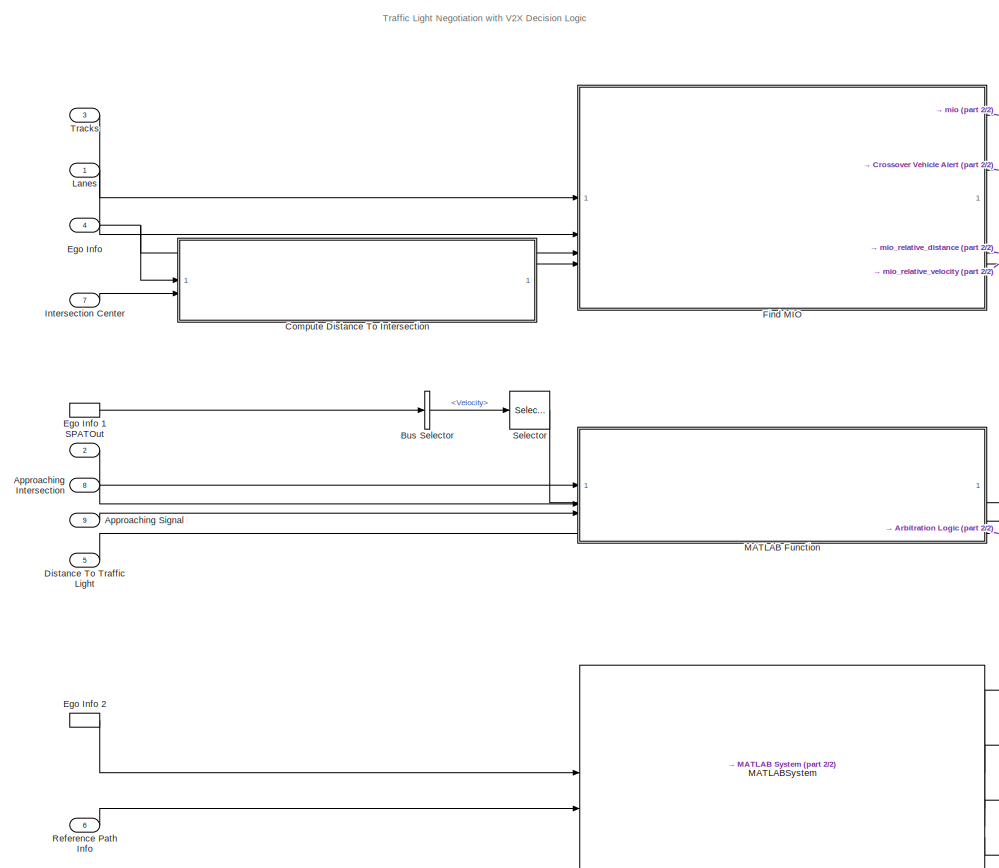
[diagram: root canvas - part 1/2, left side, full height]
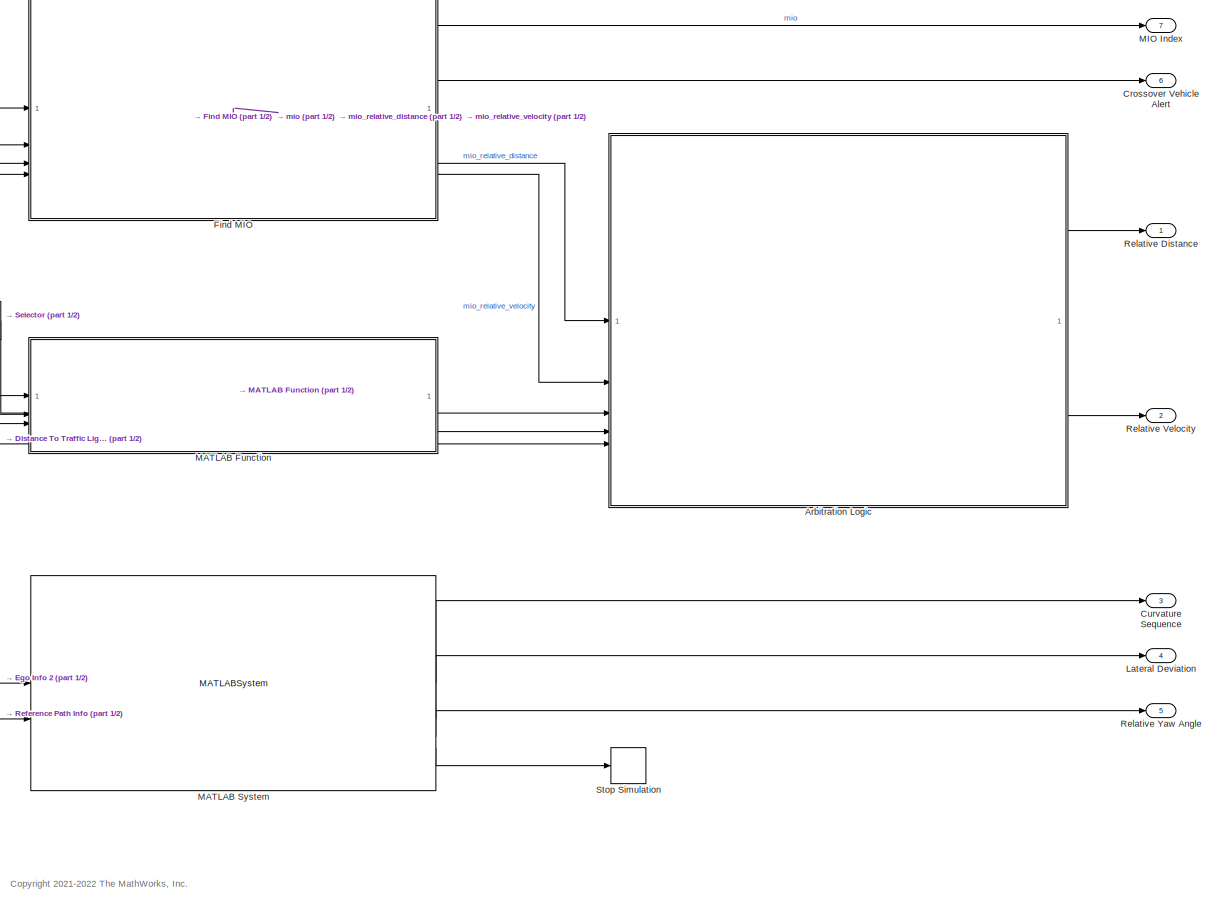
[diagram: root canvas - part 2/2, center side, full height]
MODEL slx_30c26fd429b3
KIND model
CONFIG AbsTol = auto
CONFIG EnableMultiTasking = on
CONFIG FixedStep = 0.001
CONFIG MaxStep = auto
CONFIG MinStep = auto
CONFIG RelTol = 1e-8
CONFIG SampleTimeConstraint = Unconstrained
CONFIG SolverName = VariableStepAuto
CONFIG StartTime = 0.0
CONFIG StopTime = scenario.StopTime
BLOCK [Inport] Approaching Intersection
  OutDataTypeStr = string
  Port = 8
BLOCK [Inport] Approaching Signal
  OutDataTypeStr = string
  Port = 9
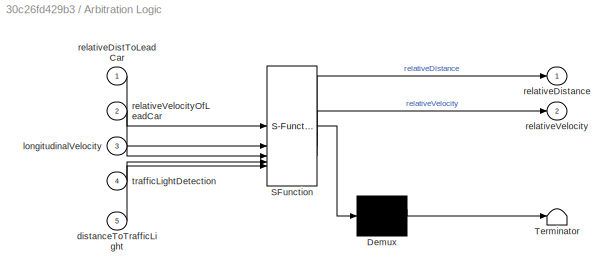
BLOCK [SubSystem] Arbitration Logic
  ErrorFcn = Stateflow.Translate.translate
  PermitHierarchicalResolution = ExplicitOnly
  SFBlockType = Chart
  SystemSampleTime = Ts
  TreatAsAtomicUnit = on
BLOCK [Demux] Arbitration Logic/ Demux 
  Outputs = 1
BLOCK [S-Function] Arbitration Logic/ SFunction 
  EnableBusSupport = on
  FunctionName = sf_sfun
  PortCounts = [5 3]
  SFcnIsStateOwnerBlock = off
  SFunctionDeploymentMode = off
  Tag = Stateflow S-Function 5
BLOCK [Terminator] Arbitration Logic/ Terminator 
BLOCK [Inport] Arbitration Logic/distanceToTrafficLight
  Port = 5
BLOCK [Inport] Arbitration Logic/longitudinalVelocity
  Port = 3
BLOCK [Inport] Arbitration Logic/relativeDistToLeadCar
BLOCK [Outport] Arbitration Logic/relativeDistance
BLOCK [Outport] Arbitration Logic/relativeVelocity
  Port = 2
BLOCK [Inport] Arbitration Logic/relativeVelocityOfLeadCar
  Port = 2
BLOCK [Inport] Arbitration Logic/trafficLightDetection
  Port = 4
BLOCK [BusSelector] Bus Selector
  OutputSignals = Velocity
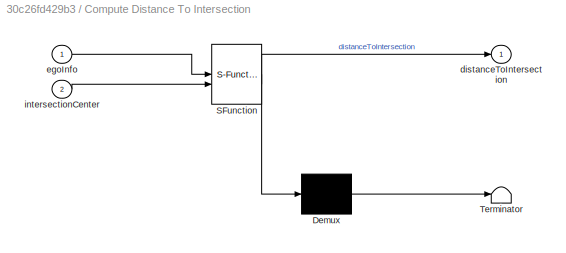
BLOCK [SubSystem] Compute Distance To Intersection
  ErrorFcn = Stateflow.Translate.translate
  PermitHierarchicalResolution = ExplicitOnly
  SFBlockType = MATLAB Function
  TreatAsAtomicUnit = on
BLOCK [Demux] Compute Distance To Intersection/ Demux 
  Outputs = 1
BLOCK [S-Function] Compute Distance To Intersection/ SFunction 
  EnableBusSupport = on
  FunctionName = sf_sfun
  PortCounts = [2 2]
  SFcnIsStateOwnerBlock = off
  SFunctionDeploymentMode = off
  Tag = Stateflow S-Function 2
BLOCK [Terminator] Compute Distance To Intersection/ Terminator 
BLOCK [Outport] Compute Distance To Intersection/distanceToIntersection
BLOCK [Inport] Compute Distance To Intersection/egoInfo
BLOCK [Inport] Compute Distance To Intersection/intersectionCenter
  Port = 2
BLOCK [Outport] Crossover Vehicle Alert
  Port = 6
BLOCK [Outport] Curvature Sequence
  Port = 3
BLOCK [Inport] Distance To Traffic Light
  OutDataTypeStr = double
  Port = 5
  PortDimensions = 1
  SampleTime = [0.10000000000000001,0]
  SamplingMode = Sample based
  SignalType = real
BLOCK [Inport] Ego Info 
  OutDataTypeStr = Bus: BusVehiclePose
  Port = 4
  SampleTime = [0.10000000000000001,0]
  SamplingMode = Sample based
  SignalType = real
BLOCK [InportShadow] Ego Info 1
  OutDataTypeStr = Bus: BusVehiclePose
  Port = 4
  SampleTime = [0.10000000000000001,0]
  SamplingMode = Sample based
  SignalType = real
BLOCK [InportShadow] Ego Info 2
  OutDataTypeStr = Bus: BusVehiclePose
  Port = 4
  SampleTime = [0.10000000000000001,0]
  SamplingMode = Sample based
  SignalType = real
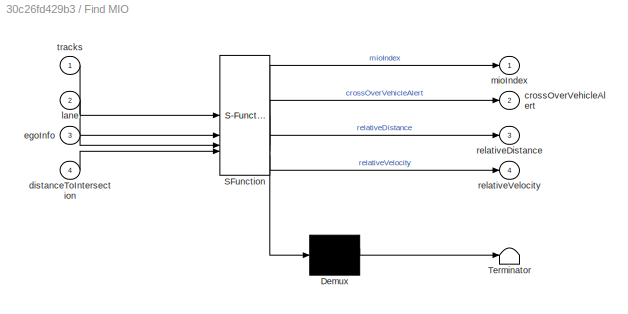
BLOCK [SubSystem] Find MIO
  ErrorFcn = Stateflow.Translate.translate
  PermitHierarchicalResolution = ExplicitOnly
  SFBlockType = MATLAB Function
  SystemSampleTime = Ts
  TreatAsAtomicUnit = on
BLOCK [Demux] Find MIO/ Demux 
  Outputs = 1
BLOCK [S-Function] Find MIO/ SFunction 
  EnableBusSupport = on
  FunctionName = sf_sfun
  Parameters = maxDistance,posSelector,velSelector
  PortCounts = [4 5]
  SFcnIsStateOwnerBlock = off
  SFunctionDeploymentMode = off
  Tag = Stateflow S-Function 1
BLOCK [Terminator] Find MIO/ Terminator 
BLOCK [Outport] Find MIO/crossOverVehicleAlert
  Port = 2
BLOCK [Inport] Find MIO/distanceToIntersection
  Port = 4
BLOCK [Inport] Find MIO/egoInfo
  Port = 3
BLOCK [Inport] Find MIO/lane
  Port = 2
BLOCK [Outport] Find MIO/mioIndex
  VectorParamsAs1DForOutWhenUnconnected = off
BLOCK [Outport] Find MIO/relativeDistance
  Port = 3
  VectorParamsAs1DForOutWhenUnconnected = off
BLOCK [Outport] Find MIO/relativeVelocity
  Port = 4
  VectorParamsAs1DForOutWhenUnconnected = off
BLOCK [Inport] Find MIO/tracks
BLOCK [Inport] Intersection Center
  OutDataTypeStr = double
  Port = 7
  PortDimensions = 3
  SampleTime = [0.10000000000000001,0]
  SamplingMode = Sample based
  SignalType = real
BLOCK [Inport] Lanes
  OutDataTypeStr = Bus: LaneSensor
BLOCK [Outport] Lateral Deviation
  Port = 4
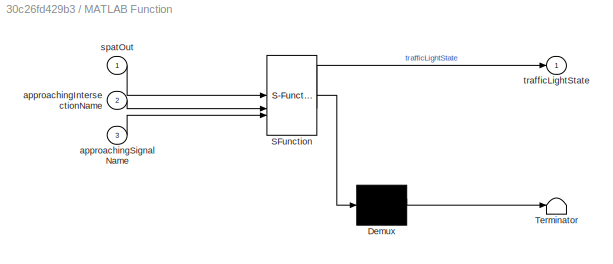
BLOCK [SubSystem] MATLAB Function
  ErrorFcn = Stateflow.Translate.translate
  PermitHierarchicalResolution = ExplicitOnly
  SFBlockType = MATLAB Function
  ShowPortLabels = FromPortBlockName
  TreatAsAtomicUnit = on
BLOCK [Demux] MATLAB Function/ Demux 
  Outputs = 1
BLOCK [S-Function] MATLAB Function/ SFunction 
  EnableBusSupport = on
  FunctionName = sf_sfun
  PortCounts = [3 2]
  SFcnIsStateOwnerBlock = off
  SFunctionDeploymentMode = off
  Tag = Stateflow S-Function 3
BLOCK [Terminator] MATLAB Function/ Terminator 
BLOCK [Inport] MATLAB Function/approachingIntersectionName
  Port = 2
BLOCK [Inport] MATLAB Function/approachingSignalName
  Port = 3
BLOCK [Inport] MATLAB Function/spatOut
BLOCK [Outport] MATLAB Function/trafficLightState
BLOCK [MATLABSystem] MATLAB System
  DistanceFromCGToRear = lr
  MaskDisplay = disp('HelperCalculateReferencePose');\nport_label('input',1,'EgoActor');\nport_label('input',2,'EgoReferencePath');\nport_label('output',1,'CurvatureSequence');\nport_label('output',2,'LateralDeviation');\nport_label('output',3,'RelativeYawAngle');\nport_label('output',4,'IsGoalReached');
  MaskType = HelperCalculateReferencePose
  PredictionHorizon = PredictionHorizon
  SampleTime = 0.1
  SimulateUsing = Code generation
  System = HelperCalculateReferencePose
BLOCK [Outport] MIO Index
  Port = 7
BLOCK [Inport] Reference Path Info 
  BusOutputAsStruct = on
  OutDataTypeStr = Bus: ReferencePathInfo
  Port = 6
  PortDimensions = 1
  SampleTime = [0.10000000000000001,0]
BLOCK [Outport] Relative Distance
  OutDataTypeStr = double
  PortDimensions = 1
  SampleTime = [0.10000000000000001,0]
  SamplingMode = Sample based
  SignalType = real
  VectorParamsAs1DForOutWhenUnconnected = off
BLOCK [Outport] Relative Velocity
  OutDataTypeStr = double
  Port = 2
  PortDimensions = 1
  SampleTime = [0.10000000000000001,0]
  SamplingMode = Sample based
  SignalType = real
  VectorParamsAs1DForOutWhenUnconnected = off
BLOCK [Outport] Relative Yaw Angle
  Port = 5
BLOCK [Inport] SPATOut
  BusOutputAsStruct = on
  OutDataTypeStr = Bus: BusSPAT
  Port = 2
BLOCK [Selector] Selector
  IndexOptions = Index vector (dialog)
  Indices = [1]
  InputPortWidth = 3
  OutputSizes = 1
BLOCK [Stop] Stop Simulation
BLOCK [Inport] Tracks
  BusOutputAsStruct = on
  OutDataTypeStr = Bus: BusMultiObjectTracker
  Port = 3
ANNOTATION (root): <copyright redacted>
ANNOTATION (root): Traffic Light Negotiation with V2X Decision Logic
LINE Approaching Intersection:1 -> MATLAB Function:2
LINE Approaching Signal:1 -> MATLAB Function:3
LINE Arbitration Logic:1 -> Relative Distance:1
LINE Arbitration Logic:2 -> Relative Velocity:1
LINE Bus Selector:1 -> Selector:1
LINE Compute Distance To Intersection:1 -> Find MIO:4
LINE Distance To Traffic Light:1 -> Arbitration Logic:5
LINE Ego Info 1:1 -> Bus Selector:1
LINE Ego Info 2:1 -> MATLAB System:1
NET Ego Info :1 -> Compute Distance To Intersection:1, Find MIO:3
LINE Find MIO:1 -> MIO Index:1
LINE Find MIO:2 -> Crossover Vehicle Alert:1
LINE Find MIO:3 -> Arbitration Logic:1
LINE Find MIO:4 -> Arbitration Logic:2
LINE Intersection Center:1 -> Compute Distance To Intersection:2
LINE Lanes:1 -> Find MIO:2
LINE MATLAB Function:1 -> Arbitration Logic:4
LINE MATLAB System:1 -> Curvature Sequence:1
LINE MATLAB System:2 -> Lateral Deviation:1
LINE MATLAB System:3 -> Relative Yaw Angle:1
LINE MATLAB System:4 -> Stop Simulation:1
LINE Reference Path Info :1 -> MATLAB System:2
LINE SPATOut:1 -> MATLAB Function:1
LINE Selector:1 -> Arbitration Logic:3
LINE Tracks:1 -> Find MIO:1
note: NET lines group one-source signal fan-out (src -> all destinations, sorted); 1:1 wires keep LINE
CHART Compute Distance To Intersection states=1 transitions=1
  STATE_LABEL 'eML_blk_kernel()'
  STATE_LABEL 'SCRIPT:\nfunction distanceToIntersection = computeDistanceToIntersection(egoInfo,intersectionCenter)\n\ncurrentEgoPose = [0 0 0];\ncurrentEgoPose = egoInfo.Position;\ndistanceToIntersection = double(sqrt((intersectionCenter(1)- ...\n    currentEgoPose(1))^2 + (intersectionCenter(2)- currentEgoPose(2))^2));\n\nend'
CHART MATLAB Function states=1 transitions=1
  STATE_LABEL 'eML_blk_kernel()'
  STATE_LABEL 'SCRIPT:\nfunction trafficLightState = extractTrafficLightDetection(spatOut,approachingIntersectionName,approachingSignalName)\n    % approachingIntersectionName = "TrafficLightGroup_1";\n    % approachingSignalName = "TrafficLight_1";\n    trafficLightState = -1;\n    coder.extrinsic("helperGetTrafficLightDetection")\n    trafficLightState = helperGetTrafficLightDetection(spatOut,approachingIntersection...<+33ch>'
CHART Arbitration Logic states=2 transitions=6
  STATE_LABEL 'OnEntry\nentry:\nrelativeDistance = relativeDistToLeadCar;\nrelativeVelocity = relativeVelocityOfLeadCar;\n'
  STATE_LABEL 'OnRedAndYellowLightDetection\nentry:\nrelativeDistance = min(relativeDistToLeadCar,distanceToTrafficLight);\nrelativeVelocity = min(relativeVelocityOfLeadCar,longitudinalVelocity);\n'
CHART Find MIO states=1 transitions=1
  STATE_LABEL 'eML_blk_kernel()'
  STATE_LABEL "SCRIPT:\nfunction [mioIndex,crossOverVehicleAlert,relativeDistance,relativeVelocity] = findMIO(tracks, lane, egoInfo, maxDistance,distanceToIntersection,posSelector, velSelector)\n% This function finds the MIO: Which satisfies all the criteria below:\n% * Within the ego car's lane.\n% * In front of the ego car.\n% * Approaching the ego from the left or right at intersection\n\n% <copyright redacted>
CHART  states=0 transitions=0
CHART  states=0 transitions=0
CHART  states=0 transitions=0
CHART  states=0 transitions=0
